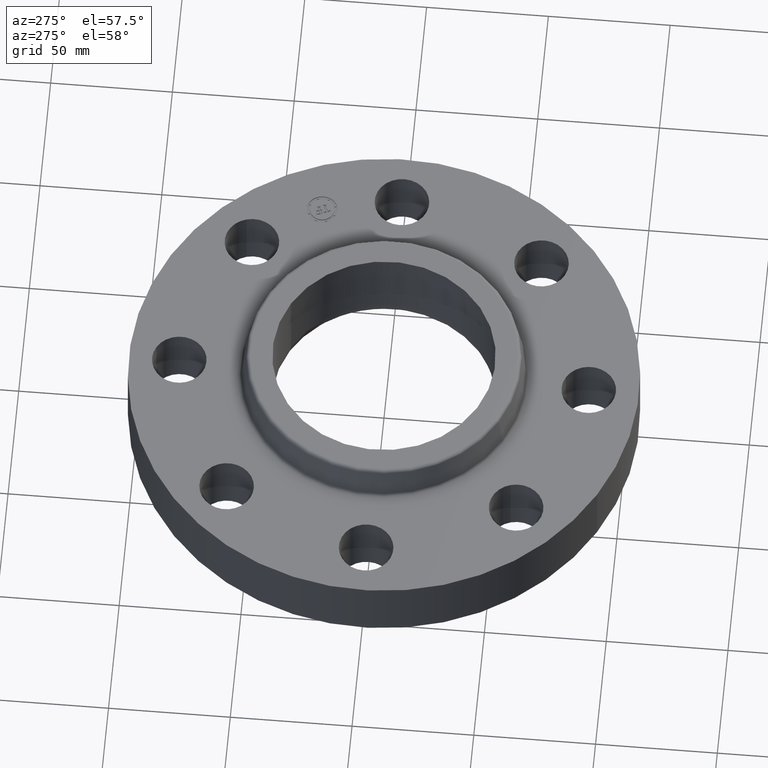
[diagram: clean part render]
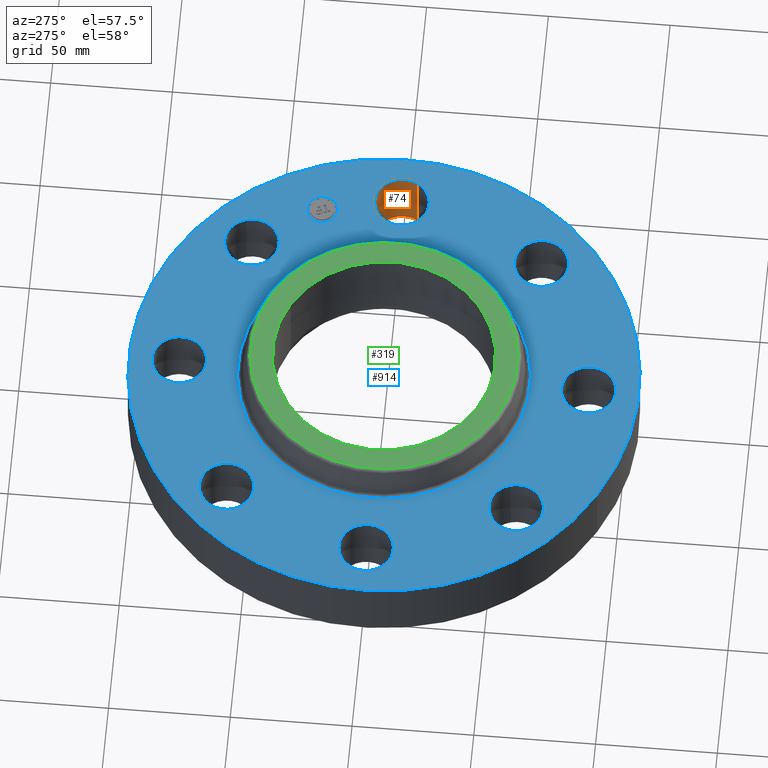
[diagram: same view with three faces highlighted in distinct colors, each labeled with its STEP entity id]
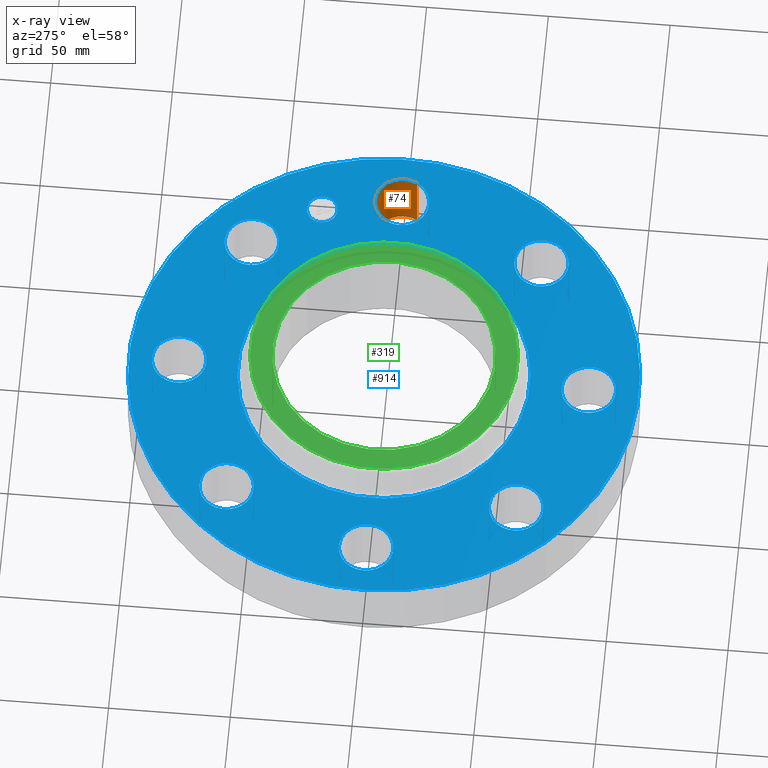
[diagram: x-ray of the same camera — body ghosted, the three highlighted faces saturated]
A machine part, auxiliary view with three faces highlighted in distinct colors.
The next image is the same camera in x-ray (body ghosted, the three faces saturated) — at least one of them is partly hidden behind the body in this view.
Their STEP definitions:

[orange] entity #74 — the highlighted cylindrical surface (edge-blend (fillet) strip) has radius 11.176 mm, axis along (0, -0, -1).
#38=AXIS2_PLACEMENT_3D('Cylinder Axis2P3D',#35,#36,#37) ;
#51=AXIS2_PLACEMENT_3D('Circle Axis2P3D',#49,#50,$) ;
#65=AXIS2_PLACEMENT_3D('Circle Axis2P3D',#63,#64,$) ;
#35=CARTESIAN_POINT('Axis2P3D Location',(3.31000000001,0.,1.11606299213)) ;
#40=CARTESIAN_POINT('Line Origine',(2.92386367278,0.210947236987,0.560000000002)) ;
#44=CARTESIAN_POINT('Vertex',(2.92386367278,0.210947236987,0.)) ;
#46=CARTESIAN_POINT('Vertex',(2.92386367278,0.210947236987,1.12)) ;
#49=CARTESIAN_POINT('Axis2P3D Location',(3.31000000001,0.,0.)) ;
#53=CARTESIAN_POINT('Vertex',(3.69613632725,-0.210947236987,0.)) ;
#56=CARTESIAN_POINT('Line Origine',(3.69613632725,-0.210947236987,0.560000000002)) ;
#60=CARTESIAN_POINT('Vertex',(3.69613632725,-0.210947236987,1.12)) ;
#63=CARTESIAN_POINT('Axis2P3D Location',(3.31000000001,0.,1.12)) ;
#36=DIRECTION('Axis2P3D Direction',(0.,-0.,-0.0393700787402)) ;
#37=DIRECTION('Axis2P3D XDirection',(0.0345504945626,-0.0188750212049,0.)) ;
#41=DIRECTION('Vector Direction',(0.,0.,-0.0393700787402)) ;
#50=DIRECTION('Axis2P3D Direction',(0.,-0.,-0.0393700787402)) ;
#57=DIRECTION('Vector Direction',(0.,0.,-0.0393700787402)) ;
#64=DIRECTION('Axis2P3D Direction',(0.,-0.,-0.0393700787402)) ;
#42=VECTOR('Line Direction',#41,0.0393700787402) ;
#58=VECTOR('Line Direction',#57,0.0393700787402) ;
#69=ORIENTED_EDGE('',*,*,#48,.F.) ;
#70=ORIENTED_EDGE('',*,*,#55,.T.) ;
#71=ORIENTED_EDGE('',*,*,#62,.T.) ;
#72=ORIENTED_EDGE('',*,*,#67,.F.) ;
#74=ADVANCED_FACE('PartBody',(#73),#39,.F.) ;
#52=CIRCLE('generated circle',#51,0.440000000002) ;
#66=CIRCLE('generated circle',#65,0.440000000002) ;
#39=CYLINDRICAL_SURFACE('generated cylinder',#38,0.440000000002) ;
#48=EDGE_CURVE('',#45,#47,#43,.F.) ;
#55=EDGE_CURVE('',#45,#54,#52,.T.) ;
#62=EDGE_CURVE('',#54,#61,#59,.F.) ;
#67=EDGE_CURVE('',#47,#61,#66,.T.) ;
#68=EDGE_LOOP('',(#69,#70,#71,#72)) ;
#73=FACE_OUTER_BOUND('',#68,.T.) ;
#43=LINE('Line',#40,#42) ;
#59=LINE('Line',#56,#58) ;
#45=VERTEX_POINT('',#44) ;
#47=VERTEX_POINT('',#46) ;
#54=VERTEX_POINT('',#53) ;
#61=VERTEX_POINT('',#60) ;

[blue] entity #914 — the highlighted planar face has unit normal (0, 0, -1).
#65=AXIS2_PLACEMENT_3D('Circle Axis2P3D',#63,#64,$) ;
#82=AXIS2_PLACEMENT_3D('Circle Axis2P3D',#80,#81,$) ;
#115=AXIS2_PLACEMENT_3D('Circle Axis2P3D',#113,#114,$) ;
#139=AXIS2_PLACEMENT_3D('Circle Axis2P3D',#137,#138,$) ;
#156=AXIS2_PLACEMENT_3D('Circle Axis2P3D',#154,#155,$) ;
#191=AXIS2_PLACEMENT_3D('Circle Axis2P3D',#189,#190,$) ;
#571=AXIS2_PLACEMENT_3D('Circle Axis2P3D',#569,#570,$) ;
#583=AXIS2_PLACEMENT_3D('Circle Axis2P3D',#581,#582,$) ;
#614=AXIS2_PLACEMENT_3D('Circle Axis2P3D',#612,#613,$) ;
#626=AXIS2_PLACEMENT_3D('Circle Axis2P3D',#624,#625,$) ;
#657=AXIS2_PLACEMENT_3D('Circle Axis2P3D',#655,#656,$) ;
#669=AXIS2_PLACEMENT_3D('Circle Axis2P3D',#667,#668,$) ;
#700=AXIS2_PLACEMENT_3D('Circle Axis2P3D',#698,#699,$) ;
#712=AXIS2_PLACEMENT_3D('Circle Axis2P3D',#710,#711,$) ;
#743=AXIS2_PLACEMENT_3D('Circle Axis2P3D',#741,#742,$) ;
#755=AXIS2_PLACEMENT_3D('Circle Axis2P3D',#753,#754,$) ;
#786=AXIS2_PLACEMENT_3D('Circle Axis2P3D',#784,#785,$) ;
#798=AXIS2_PLACEMENT_3D('Circle Axis2P3D',#796,#797,$) ;
#829=AXIS2_PLACEMENT_3D('Circle Axis2P3D',#827,#828,$) ;
#841=AXIS2_PLACEMENT_3D('Circle Axis2P3D',#839,#840,$) ;
#854=AXIS2_PLACEMENT_3D('Plane Axis2P3D',#851,#852,#853) ;
#898=AXIS2_PLACEMENT_3D('Circle Axis2P3D',#896,#897,$) ;
#907=AXIS2_PLACEMENT_3D('Circle Axis2P3D',#905,#906,$) ;
#46=CARTESIAN_POINT('Vertex',(2.92386367278,0.210947236987,1.12)) ;
#60=CARTESIAN_POINT('Vertex',(3.69613632725,-0.210947236987,1.12)) ;
#63=CARTESIAN_POINT('Axis2P3D Location',(3.31000000001,0.,1.12)) ;
#80=CARTESIAN_POINT('Axis2P3D Location',(3.31000000001,0.,1.12)) ;
#110=CARTESIAN_POINT('Vertex',(-1.97763034675,-3.62002806781,1.12)) ;
#113=CARTESIAN_POINT('Axis2P3D Location',(0.,0.,1.12)) ;
#117=CARTESIAN_POINT('Vertex',(1.97763034675,3.62002806781,1.12)) ;
#137=CARTESIAN_POINT('Axis2P3D Location',(0.,0.,1.12)) ;
#154=CARTESIAN_POINT('Axis2P3D Location',(0.,0.,1.12)) ;
#158=CARTESIAN_POINT('Vertex',(1.13161014174,2.07139847022,1.12)) ;
#160=CARTESIAN_POINT('Vertex',(-1.13161014174,-2.07139847022,1.12)) ;
#189=CARTESIAN_POINT('Axis2P3D Location',(0.,0.,1.12)) ;
#559=CARTESIAN_POINT('Vertex',(-2.21664605203,1.91832160854,1.12)) ;
#566=CARTESIAN_POINT('Vertex',(-2.46440083944,2.76272528293,1.12)) ;
#569=CARTESIAN_POINT('Axis2P3D Location',(-2.34052344574,2.34052344574,1.12)) ;
#581=CARTESIAN_POINT('Axis2P3D Location',(-2.34052344574,2.34052344574,1.12)) ;
#602=CARTESIAN_POINT('Vertex',(0.210947236987,-2.92386367278,1.12)) ;
#609=CARTESIAN_POINT('Vertex',(-0.210947236987,-3.69613632725,1.12)) ;
#612=CARTESIAN_POINT('Axis2P3D Location',(-3.56803423843E-016,-3.31000000001,1.12)) ;
#624=CARTESIAN_POINT('Axis2P3D Location',(-3.56803423843E-016,-3.31000000001,1.12)) ;
#645=CARTESIAN_POINT('Vertex',(-0.210947236987,2.92386367278,1.12)) ;
#652=CARTESIAN_POINT('Vertex',(0.210947236987,3.69613632725,1.12)) ;
#655=CARTESIAN_POINT('Axis2P3D Location',(-6.08037135779E-016,3.31000000001,1.12)) ;
#667=CARTESIAN_POINT('Axis2P3D Location',(-6.08037135779E-016,3.31000000001,1.12)) ;
#688=CARTESIAN_POINT('Vertex',(-1.91832160854,-2.21664605203,1.12)) ;
#695=CARTESIAN_POINT('Vertex',(-2.76272528293,-2.46440083944,1.12)) ;
#698=CARTESIAN_POINT('Axis2P3D Location',(-2.34052344574,-2.34052344574,1.12)) ;
#710=CARTESIAN_POINT('Axis2P3D Location',(-2.34052344574,-2.34052344574,1.12)) ;
#731=CARTESIAN_POINT('Vertex',(1.91832160854,2.21664605203,1.12)) ;
#738=CARTESIAN_POINT('Vertex',(2.76272528293,2.46440083944,1.12)) ;
#741=CARTESIAN_POINT('Axis2P3D Location',(2.34052344574,2.34052344574,1.12)) ;
#753=CARTESIAN_POINT('Axis2P3D Location',(2.34052344574,2.34052344574,1.12)) ;
#774=CARTESIAN_POINT('Vertex',(-2.92386367278,-0.210947236987,1.12)) ;
#781=CARTESIAN_POINT('Vertex',(-3.69613632725,0.210947236987,1.12)) ;
#784=CARTESIAN_POINT('Axis2P3D Location',(-3.31000000001,-4.05358090519E-016,1.12)) ;
#796=CARTESIAN_POINT('Axis2P3D Location',(-3.31000000001,-4.05358090519E-016,1.12)) ;
#817=CARTESIAN_POINT('Vertex',(2.21664605203,-1.91832160854,1.12)) ;
#824=CARTESIAN_POINT('Vertex',(2.46440083944,-2.76272528293,1.12)) ;
#827=CARTESIAN_POINT('Axis2P3D Location',(2.34052344574,-2.34052344574,1.12)) ;
#839=CARTESIAN_POINT('Axis2P3D Location',(2.34052344574,-2.34052344574,1.12)) ;
#851=CARTESIAN_POINT('Axis2P3D Location',(0.,4.12500000002,1.12)) ;
#896=CARTESIAN_POINT('Axis2P3D Location',(3.05804125262,1.26668216113,1.12)) ;
#900=CARTESIAN_POINT('Vertex',(2.96332710311,1.49534234543,1.12)) ;
#902=CARTESIAN_POINT('Vertex',(3.15275540214,1.03802197684,1.12)) ;
#905=CARTESIAN_POINT('Axis2P3D Location',(3.05804125262,1.26668216113,1.12)) ;
#64=DIRECTION('Axis2P3D Direction',(0.,-0.,-0.0393700787402)) ;
#81=DIRECTION('Axis2P3D Direction',(0.,-0.,-0.0393700787402)) ;
#114=DIRECTION('Axis2P3D Direction',(0.,0.,-0.0393700787402)) ;
#138=DIRECTION('Axis2P3D Direction',(0.,0.,-0.0393700787402)) ;
#155=DIRECTION('Axis2P3D Direction',(0.,0.,-0.0393700787402)) ;
#190=DIRECTION('Axis2P3D Direction',(0.,0.,-0.0393700787402)) ;
#570=DIRECTION('Axis2P3D Direction',(0.,0.,-0.0393700787402)) ;
#582=DIRECTION('Axis2P3D Direction',(0.,0.,-0.0393700787402)) ;
#613=DIRECTION('Axis2P3D Direction',(0.,-0.,-0.0393700787402)) ;
#625=DIRECTION('Axis2P3D Direction',(0.,-0.,-0.0393700787402)) ;
#656=DIRECTION('Axis2P3D Direction',(0.,0.,-0.0393700787402)) ;
#668=DIRECTION('Axis2P3D Direction',(0.,0.,-0.0393700787402)) ;
#699=DIRECTION('Axis2P3D Direction',(-0.,0.,-0.0393700787402)) ;
#711=DIRECTION('Axis2P3D Direction',(-0.,0.,-0.0393700787402)) ;
#742=DIRECTION('Axis2P3D Direction',(0.,0.,-0.0393700787402)) ;
#754=DIRECTION('Axis2P3D Direction',(0.,0.,-0.0393700787402)) ;
#785=DIRECTION('Axis2P3D Direction',(-0.,0.,-0.0393700787402)) ;
#797=DIRECTION('Axis2P3D Direction',(-0.,0.,-0.0393700787402)) ;
#828=DIRECTION('Axis2P3D Direction',(0.,-0.,-0.0393700787402)) ;
#840=DIRECTION('Axis2P3D Direction',(0.,-0.,-0.0393700787402)) ;
#852=DIRECTION('Axis2P3D Direction',(0.,0.,-0.0393700787402)) ;
#853=DIRECTION('Axis2P3D XDirection',(0.0393700787402,0.,0.)) ;
#897=DIRECTION('Axis2P3D Direction',(0.,0.,-0.0393700787402)) ;
#906=DIRECTION('Axis2P3D Direction',(0.,0.,-0.0393700787402)) ;
#857=ORIENTED_EDGE('',*,*,#141,.F.) ;
#858=ORIENTED_EDGE('',*,*,#119,.F.) ;
#861=ORIENTED_EDGE('',*,*,#67,.T.) ;
#862=ORIENTED_EDGE('',*,*,#84,.T.) ;
#865=ORIENTED_EDGE('',*,*,#193,.T.) ;
#866=ORIENTED_EDGE('',*,*,#162,.T.) ;
#869=ORIENTED_EDGE('',*,*,#843,.T.) ;
#870=ORIENTED_EDGE('',*,*,#831,.T.) ;
#873=ORIENTED_EDGE('',*,*,#628,.T.) ;
#874=ORIENTED_EDGE('',*,*,#616,.T.) ;
#877=ORIENTED_EDGE('',*,*,#714,.T.) ;
#878=ORIENTED_EDGE('',*,*,#702,.T.) ;
#881=ORIENTED_EDGE('',*,*,#800,.T.) ;
#882=ORIENTED_EDGE('',*,*,#788,.T.) ;
#885=ORIENTED_EDGE('',*,*,#585,.T.) ;
#886=ORIENTED_EDGE('',*,*,#573,.T.) ;
#889=ORIENTED_EDGE('',*,*,#671,.T.) ;
#890=ORIENTED_EDGE('',*,*,#659,.T.) ;
#893=ORIENTED_EDGE('',*,*,#757,.T.) ;
#894=ORIENTED_EDGE('',*,*,#745,.T.) ;
#911=ORIENTED_EDGE('',*,*,#904,.T.) ;
#912=ORIENTED_EDGE('',*,*,#909,.T.) ;
#863=FACE_BOUND('',#860,.T.) ;
#867=FACE_BOUND('',#864,.T.) ;
#871=FACE_BOUND('',#868,.T.) ;
#875=FACE_BOUND('',#872,.T.) ;
#879=FACE_BOUND('',#876,.T.) ;
#883=FACE_BOUND('',#880,.T.) ;
#887=FACE_BOUND('',#884,.T.) ;
#891=FACE_BOUND('',#888,.T.) ;
#895=FACE_BOUND('',#892,.T.) ;
#913=FACE_BOUND('',#910,.T.) ;
#914=ADVANCED_FACE('PartBody',(#859,#863,#867,#871,#875,#879,#883,#887,#891,#895,#913),#855,.F.) ;
#66=CIRCLE('generated circle',#65,0.440000000002) ;
#83=CIRCLE('generated circle',#82,0.440000000002) ;
#116=CIRCLE('generated circle',#115,4.12500000002) ;
#140=CIRCLE('generated circle',#139,4.12500000002) ;
#157=CIRCLE('generated circle',#156,2.36034597788) ;
#192=CIRCLE('generated circle',#191,2.36034597788) ;
#572=CIRCLE('generated circle',#571,0.440000000002) ;
#584=CIRCLE('generated circle',#583,0.440000000002) ;
#615=CIRCLE('generated circle',#614,0.440000000002) ;
#627=CIRCLE('generated circle',#626,0.440000000002) ;
#658=CIRCLE('generated circle',#657,0.440000000002) ;
#670=CIRCLE('generated circle',#669,0.440000000002) ;
#701=CIRCLE('generated circle',#700,0.440000000002) ;
#713=CIRCLE('generated circle',#712,0.440000000002) ;
#744=CIRCLE('generated circle',#743,0.440000000002) ;
#756=CIRCLE('generated circle',#755,0.440000000002) ;
#787=CIRCLE('generated circle',#786,0.440000000002) ;
#799=CIRCLE('generated circle',#798,0.440000000002) ;
#830=CIRCLE('generated circle',#829,0.440000000002) ;
#842=CIRCLE('generated circle',#841,0.440000000002) ;
#899=CIRCLE('generated circle',#898,0.247500000001) ;
#908=CIRCLE('generated circle',#907,0.247500000001) ;
#67=EDGE_CURVE('',#47,#61,#66,.T.) ;
#84=EDGE_CURVE('',#61,#47,#83,.T.) ;
#119=EDGE_CURVE('',#111,#118,#116,.T.) ;
#141=EDGE_CURVE('',#118,#111,#140,.T.) ;
#162=EDGE_CURVE('',#159,#161,#157,.T.) ;
#193=EDGE_CURVE('',#161,#159,#192,.T.) ;
#573=EDGE_CURVE('',#560,#567,#572,.T.) ;
#585=EDGE_CURVE('',#567,#560,#584,.T.) ;
#616=EDGE_CURVE('',#603,#610,#615,.T.) ;
#628=EDGE_CURVE('',#610,#603,#627,.T.) ;
#659=EDGE_CURVE('',#646,#653,#658,.T.) ;
#671=EDGE_CURVE('',#653,#646,#670,.T.) ;
#702=EDGE_CURVE('',#689,#696,#701,.T.) ;
#714=EDGE_CURVE('',#696,#689,#713,.T.) ;
#745=EDGE_CURVE('',#732,#739,#744,.T.) ;
#757=EDGE_CURVE('',#739,#732,#756,.T.) ;
#788=EDGE_CURVE('',#775,#782,#787,.T.) ;
#800=EDGE_CURVE('',#782,#775,#799,.T.) ;
#831=EDGE_CURVE('',#818,#825,#830,.T.) ;
#843=EDGE_CURVE('',#825,#818,#842,.T.) ;
#904=EDGE_CURVE('',#901,#903,#899,.T.) ;
#909=EDGE_CURVE('',#903,#901,#908,.T.) ;
#856=EDGE_LOOP('',(#857,#858)) ;
#860=EDGE_LOOP('',(#861,#862)) ;
#864=EDGE_LOOP('',(#865,#866)) ;
#868=EDGE_LOOP('',(#869,#870)) ;
#872=EDGE_LOOP('',(#873,#874)) ;
#876=EDGE_LOOP('',(#877,#878)) ;
#880=EDGE_LOOP('',(#881,#882)) ;
#884=EDGE_LOOP('',(#885,#886)) ;
#888=EDGE_LOOP('',(#889,#890)) ;
#892=EDGE_LOOP('',(#893,#894)) ;
#910=EDGE_LOOP('',(#911,#912)) ;
#859=FACE_OUTER_BOUND('',#856,.T.) ;
#855=PLANE('',#854) ;
#47=VERTEX_POINT('',#46) ;
#61=VERTEX_POINT('',#60) ;
#111=VERTEX_POINT('',#110) ;
#118=VERTEX_POINT('',#117) ;
#159=VERTEX_POINT('',#158) ;
#161=VERTEX_POINT('',#160) ;
#560=VERTEX_POINT('',#559) ;
#567=VERTEX_POINT('',#566) ;
#603=VERTEX_POINT('',#602) ;
#610=VERTEX_POINT('',#609) ;
#646=VERTEX_POINT('',#645) ;
#653=VERTEX_POINT('',#652) ;
#689=VERTEX_POINT('',#688) ;
#696=VERTEX_POINT('',#695) ;
#732=VERTEX_POINT('',#731) ;
#739=VERTEX_POINT('',#738) ;
#775=VERTEX_POINT('',#774) ;
#782=VERTEX_POINT('',#781) ;
#818=VERTEX_POINT('',#817) ;
#825=VERTEX_POINT('',#824) ;
#901=VERTEX_POINT('',#900) ;
#903=VERTEX_POINT('',#902) ;

[green] entity #319 — the highlighted planar face has unit normal (0, 0, -1).
#263=AXIS2_PLACEMENT_3D('Circle Axis2P3D',#261,#262,$) ;
#282=AXIS2_PLACEMENT_3D('Circle Axis2P3D',#280,#281,$) ;
#295=AXIS2_PLACEMENT_3D('Plane Axis2P3D',#292,#293,#294) ;
#303=AXIS2_PLACEMENT_3D('Circle Axis2P3D',#301,#302,$) ;
#312=AXIS2_PLACEMENT_3D('Circle Axis2P3D',#310,#311,$) ;
#258=CARTESIAN_POINT('Vertex',(1.03515052174,1.89483032016,1.69000000001)) ;
#261=CARTESIAN_POINT('Axis2P3D Location',(0.,0.,1.69000000001)) ;
#265=CARTESIAN_POINT('Vertex',(-1.03515052174,-1.89483032016,1.69000000001)) ;
#280=CARTESIAN_POINT('Axis2P3D Location',(0.,0.,1.69000000001)) ;
#292=CARTESIAN_POINT('Axis2P3D Location',(0.,2.15914764313,1.69000000001)) ;
#301=CARTESIAN_POINT('Axis2P3D Location',(0.,0.,1.69000000001)) ;
#305=CARTESIAN_POINT('Vertex',(-0.862965969491,-1.57964861141,1.69000000001)) ;
#307=CARTESIAN_POINT('Vertex',(0.862965969491,1.57964861141,1.69000000001)) ;
#310=CARTESIAN_POINT('Axis2P3D Location',(0.,0.,1.69000000001)) ;
#262=DIRECTION('Axis2P3D Direction',(0.,0.,-0.0393700787402)) ;
#281=DIRECTION('Axis2P3D Direction',(0.,0.,-0.0393700787402)) ;
#293=DIRECTION('Axis2P3D Direction',(0.,0.,-0.0393700787402)) ;
#294=DIRECTION('Axis2P3D XDirection',(0.0393700787402,0.,0.)) ;
#302=DIRECTION('Axis2P3D Direction',(0.,0.,-0.0393700787402)) ;
#311=DIRECTION('Axis2P3D Direction',(0.,0.,-0.0393700787402)) ;
#298=ORIENTED_EDGE('',*,*,#267,.F.) ;
#299=ORIENTED_EDGE('',*,*,#284,.F.) ;
#316=ORIENTED_EDGE('',*,*,#309,.T.) ;
#317=ORIENTED_EDGE('',*,*,#314,.T.) ;
#318=FACE_BOUND('',#315,.T.) ;
#319=ADVANCED_FACE('PartBody',(#300,#318),#296,.F.) ;
#264=CIRCLE('generated circle',#263,2.15914764313) ;
#283=CIRCLE('generated circle',#282,2.15914764313) ;
#304=CIRCLE('generated circle',#303,1.80000000001) ;
#313=CIRCLE('generated circle',#312,1.80000000001) ;
#267=EDGE_CURVE('',#259,#266,#264,.T.) ;
#284=EDGE_CURVE('',#266,#259,#283,.T.) ;
#309=EDGE_CURVE('',#306,#308,#304,.T.) ;
#314=EDGE_CURVE('',#308,#306,#313,.T.) ;
#297=EDGE_LOOP('',(#298,#299)) ;
#315=EDGE_LOOP('',(#316,#317)) ;
#300=FACE_OUTER_BOUND('',#297,.T.) ;
#296=PLANE('',#295) ;
#259=VERTEX_POINT('',#258) ;
#266=VERTEX_POINT('',#265) ;
#306=VERTEX_POINT('',#305) ;
#308=VERTEX_POINT('',#307) ;